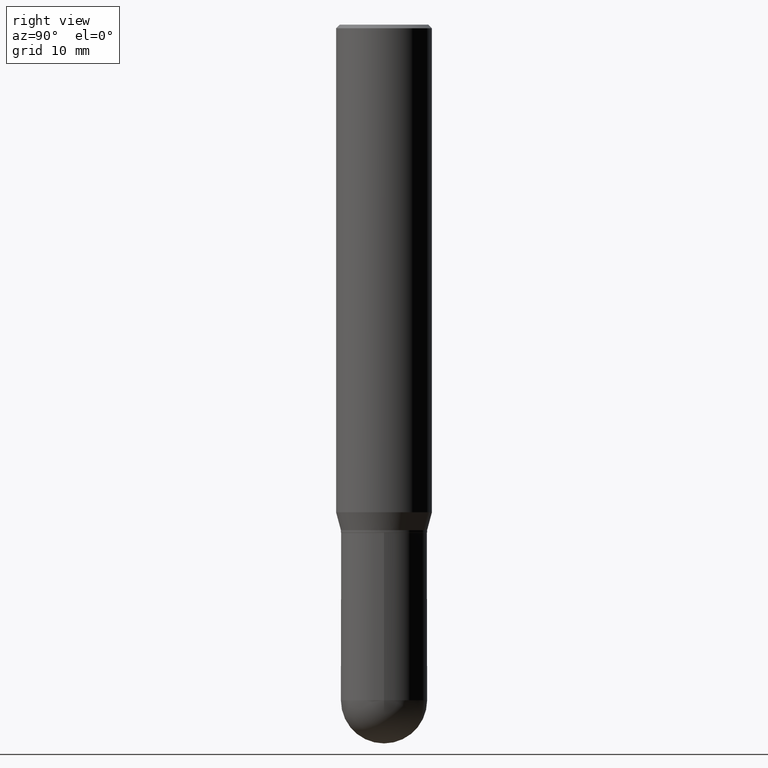
[diagram: clean part render]
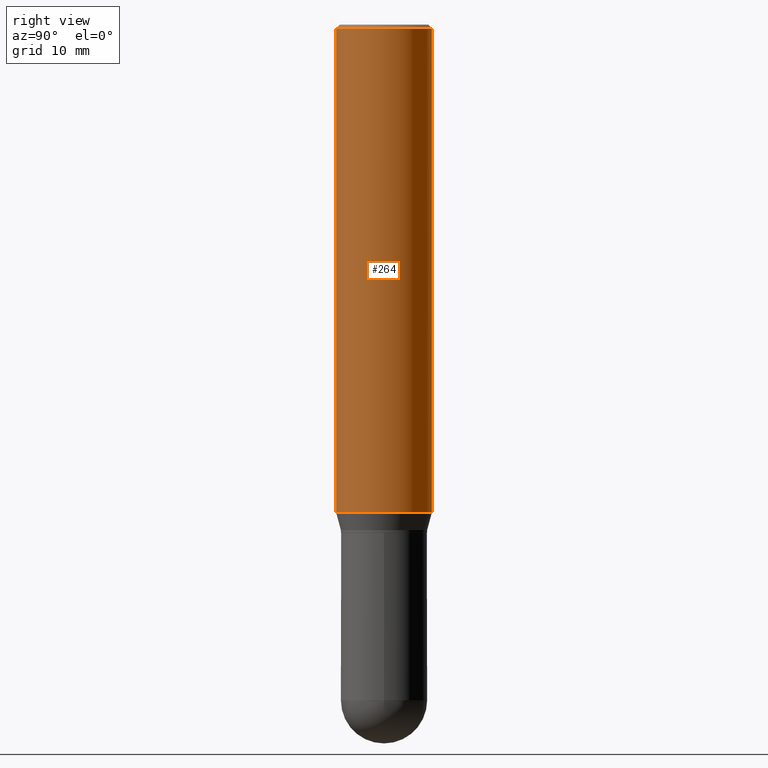
[diagram: same view with one face highlighted and labeled with its STEP entity id]
A machine part, right view. The second image highlights one B-rep face of the part: STEP entity #264.
In plain terms, the highlighted cylindrical surface (partial cylindrical patch) has radius 5 mm, axis along (-0, 0, 1).
Its self-contained STEP definition (entity closure, byte-faithful):
#1 = AXIS2_PLACEMENT_3D ( 'NONE', #118, #279, #435 ) ;
#19 = ORIENTED_EDGE ( 'NONE', *, *, #412, .T. ) ;
#22 = VERTEX_POINT ( 'NONE', #461 ) ;
#29 = FACE_OUTER_BOUND ( 'NONE', #63, .T. ) ;
#60 = VECTOR ( 'NONE', #271, 39.37007874015748143 ) ;
#63 = EDGE_LOOP ( 'NONE', ( #103, #19, #377, #256 ) ) ;
#65 = DIRECTION ( 'NONE',  ( -6.982962677686265922E-15, -1.000000000000000000, 3.491172054067977715E-15 ) ) ;
#79 = EDGE_CURVE ( 'NONE', #22, #498, #89, .T. ) ;
#89 = CIRCLE ( 'NONE', #1, 0.1968500000000000250 ) ;
#91 = DIRECTION ( 'NONE',  ( -2.445684778589314030E-29, 3.491172054067977715E-15, 1.000000000000000000 ) ) ;
#97 = AXIS2_PLACEMENT_3D ( 'NONE', #449, #91, #131 ) ;
#103 = ORIENTED_EDGE ( 'NONE', *, *, #464, .T. ) ;
#109 = EDGE_CURVE ( 'NONE', #321, #22, #145, .T. ) ;
#118 = CARTESIAN_POINT ( 'NONE',  ( 3.668527167884071097E-31, -5.236758081102108568E-17, -0.01500000000000040710 ) ) ;
#131 = DIRECTION ( 'NONE',  ( -6.982962677686265922E-15, -1.000000000000000000, 4.163344669033675634E-15 ) ) ;
#145 = LINE ( 'NONE', #146, #60 ) ;
#146 = CARTESIAN_POINT ( 'NONE',  ( -1.374596203102541214E-15, -0.1968499999999999694, 6.872372188432813315E-16 ) ) ;
#157 = CARTESIAN_POINT ( 'NONE',  ( 1.398703375343805514E-15, 0.1968499999999929750, -2.003178599090894352 ) ) ;
#170 = CARTESIAN_POINT ( 'NONE',  ( 1.398703375343756802E-15, 0.1968499999999999694, -6.872372188432813315E-16 ) ) ;
#194 = DIRECTION ( 'NONE',  ( -2.445684778589314030E-29, 3.491172054067977715E-15, 1.000000000000000000 ) ) ;
#204 = CARTESIAN_POINT ( 'NONE',  ( 0.000000000000000000, 0.000000000000000000, 0.000000000000000000 ) ) ;
#212 = LINE ( 'NONE', #170, #475 ) ;
#225 = AXIS2_PLACEMENT_3D ( 'NONE', #204, #194, #65 ) ;
#230 = CYLINDRICAL_SURFACE ( 'NONE', #225, 0.1968499999999999694 ) ;
#256 = ORIENTED_EDGE ( 'NONE', *, *, #109, .F. ) ;
#264 = ADVANCED_FACE ( 'NONE', ( #29 ), #230, .T. ) ;
#271 = DIRECTION ( 'NONE',  ( -2.445684778589314030E-29, 3.491172054067977715E-15, 1.000000000000000000 ) ) ;
#279 = DIRECTION ( 'NONE',  ( -2.445684778589314030E-29, 3.491172054067977715E-15, 1.000000000000000000 ) ) ;
#321 = VERTEX_POINT ( 'NONE', #510 ) ;
#329 = DIRECTION ( 'NONE',  ( -2.445684778589314030E-29, 3.491172054067977715E-15, 1.000000000000000000 ) ) ;
#363 = CARTESIAN_POINT ( 'NONE',  ( 1.398703375343806303E-15, 0.1968499999999999139, -0.01500000000000109579 ) ) ;
#371 = VERTEX_POINT ( 'NONE', #157 ) ;
#377 = ORIENTED_EDGE ( 'NONE', *, *, #79, .F. ) ;
#412 = EDGE_CURVE ( 'NONE', #371, #498, #212, .T. ) ;
#435 = DIRECTION ( 'NONE',  ( -6.982962677686265133E-15, -1.000000000000000000, 3.491137977679279424E-15 ) ) ;
#449 = CARTESIAN_POINT ( 'NONE',  ( 4.899143408592464903E-29, -6.993441144453169598E-15, -2.003178599090893464 ) ) ;
#461 = CARTESIAN_POINT ( 'NONE',  ( -1.374596203102541017E-15, -0.1968500000000000805, -0.01499999999999972015 ) ) ;
#464 = EDGE_CURVE ( 'NONE', #321, #371, #507, .T. ) ;
#475 = VECTOR ( 'NONE', #329, 39.37007874015748143 ) ;
#498 = VERTEX_POINT ( 'NONE', #363 ) ;
#507 = CIRCLE ( 'NONE', #97, 0.1968499999999999694 ) ;
#510 = CARTESIAN_POINT ( 'NONE',  ( -1.374596203102492502E-15, -0.1968500000000069916, -2.003178599090893020 ) ) ;